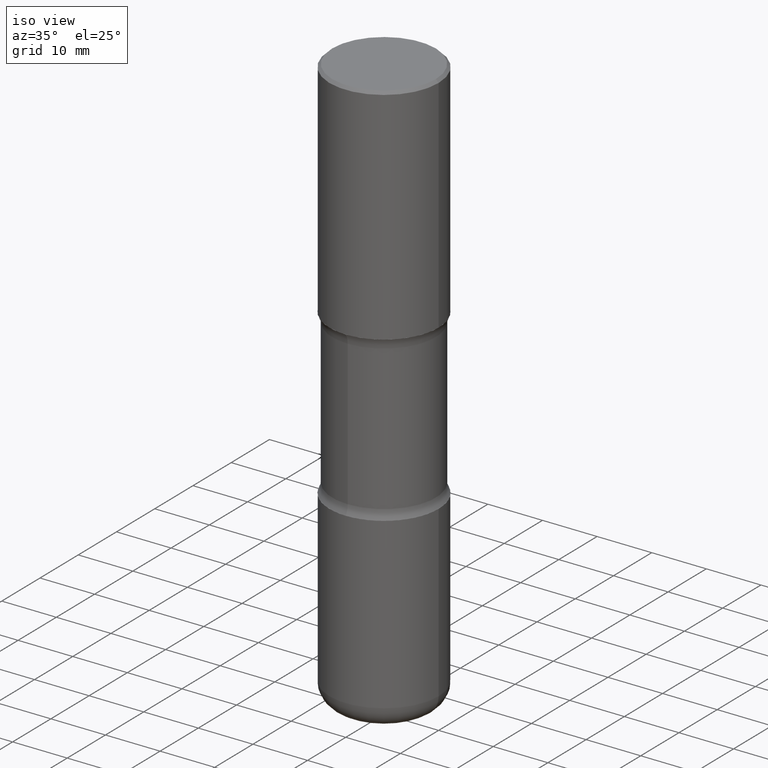
[diagram: clean part render]
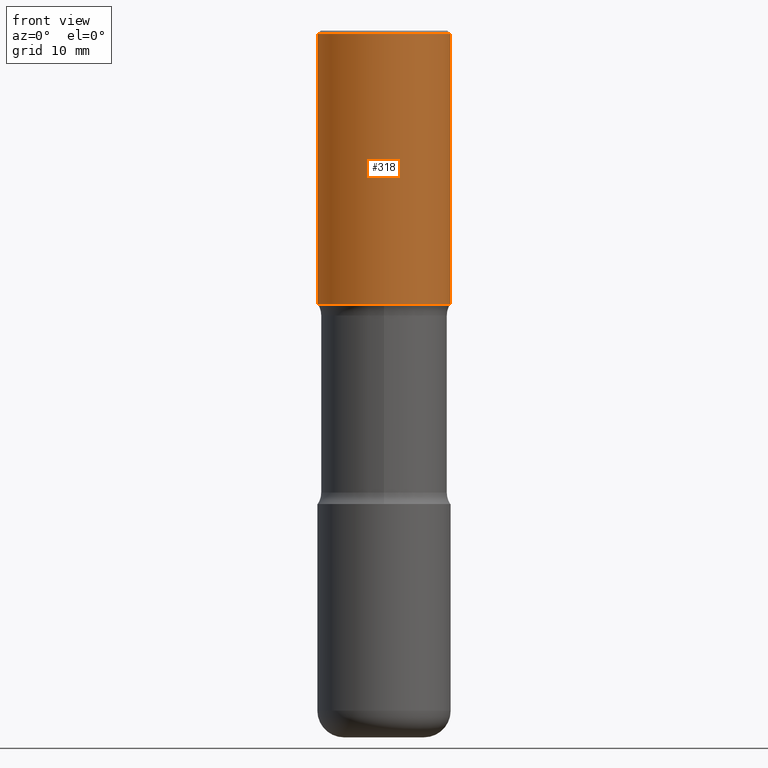
[diagram: tour spotlight — one face highlighted and labeled with its STEP entity id]
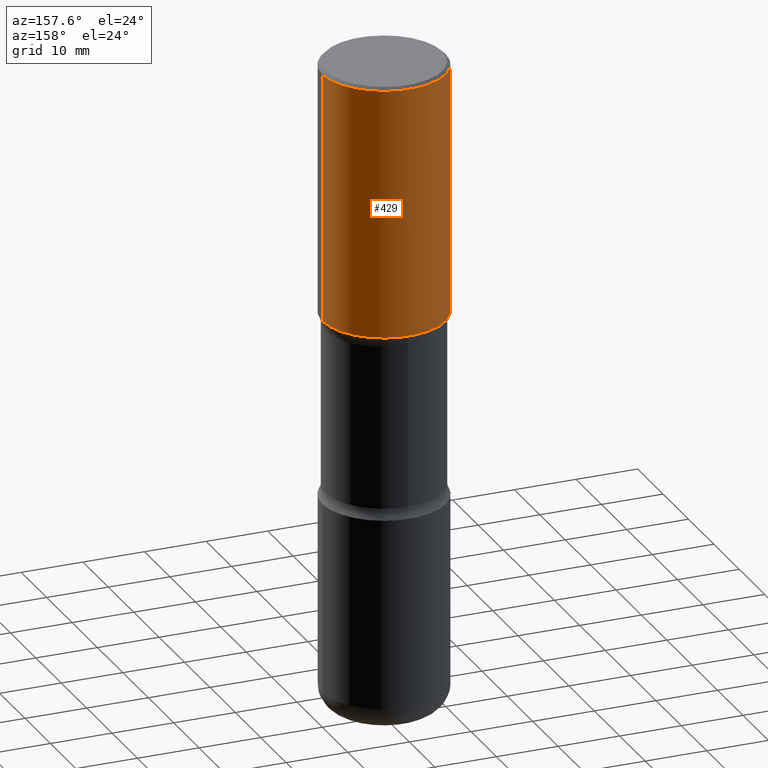
[diagram: tour spotlight — one face highlighted and labeled with its STEP entity id]
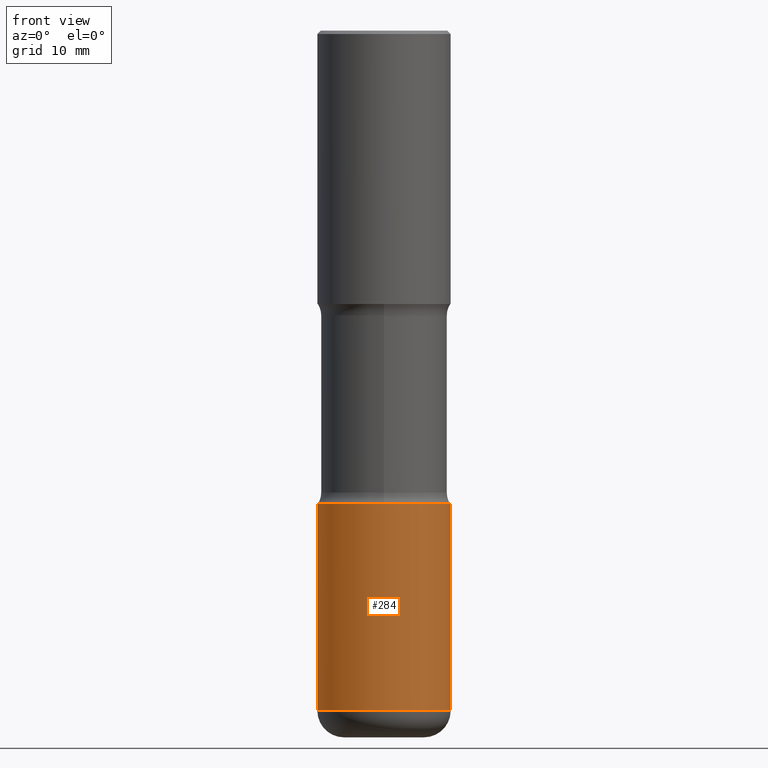
[diagram: tour spotlight — one face highlighted and labeled with its STEP entity id]
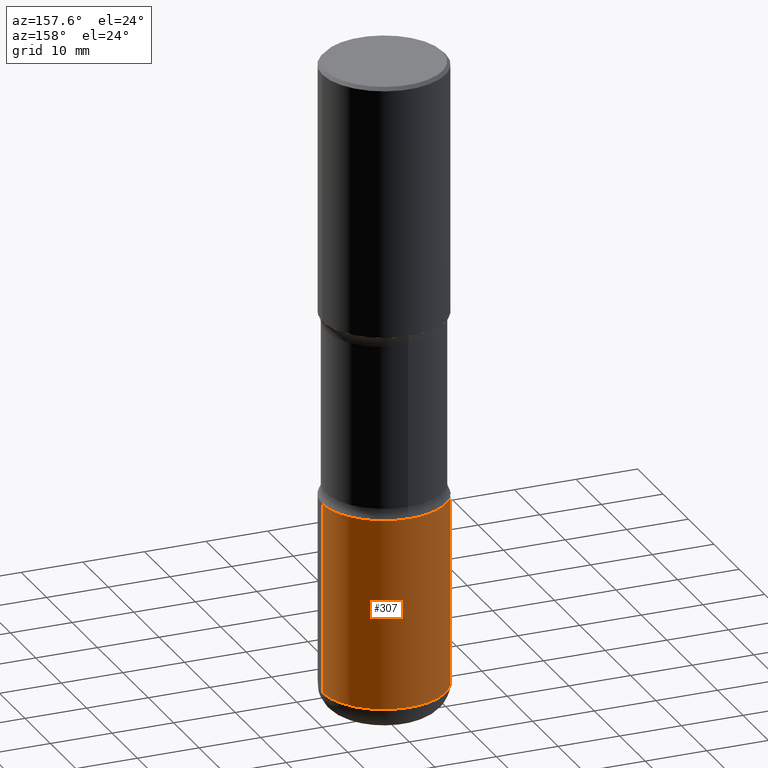
[diagram: tour spotlight — one face highlighted and labeled with its STEP entity id]
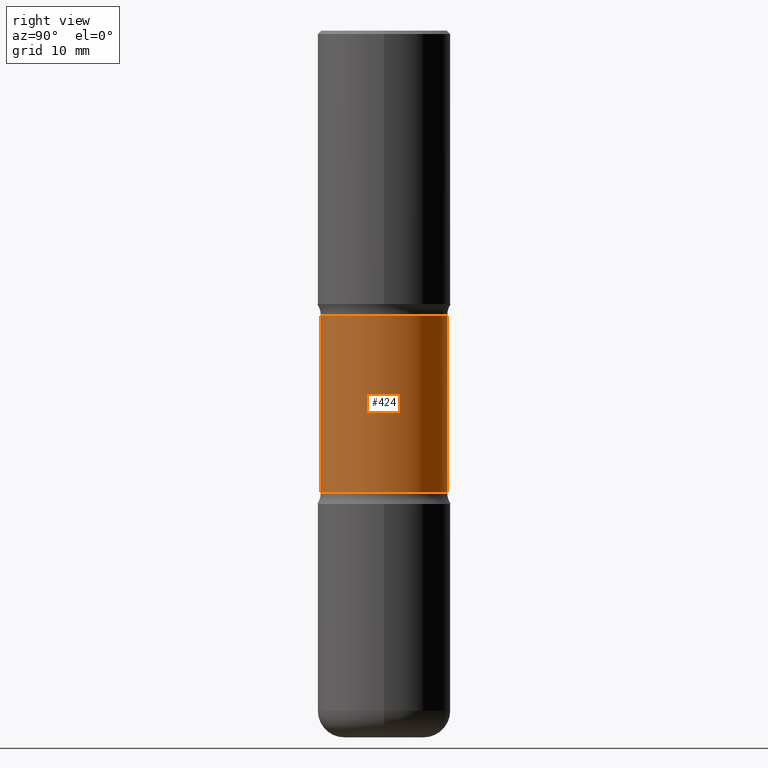
[diagram: tour spotlight — one face highlighted and labeled with its STEP entity id]
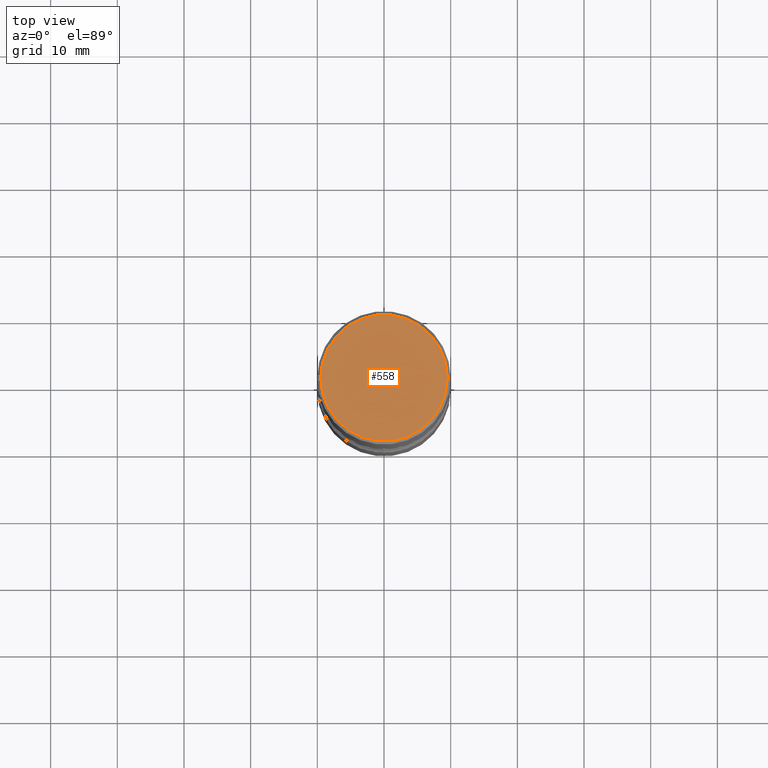
[diagram: tour spotlight — one face highlighted and labeled with its STEP entity id]
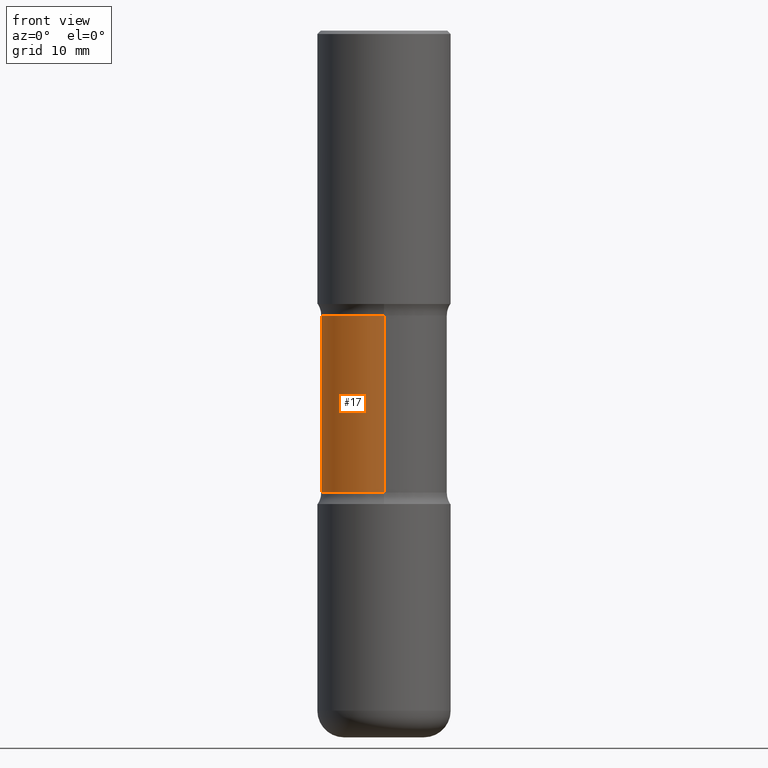
[diagram: tour spotlight — one face highlighted and labeled with its STEP entity id]
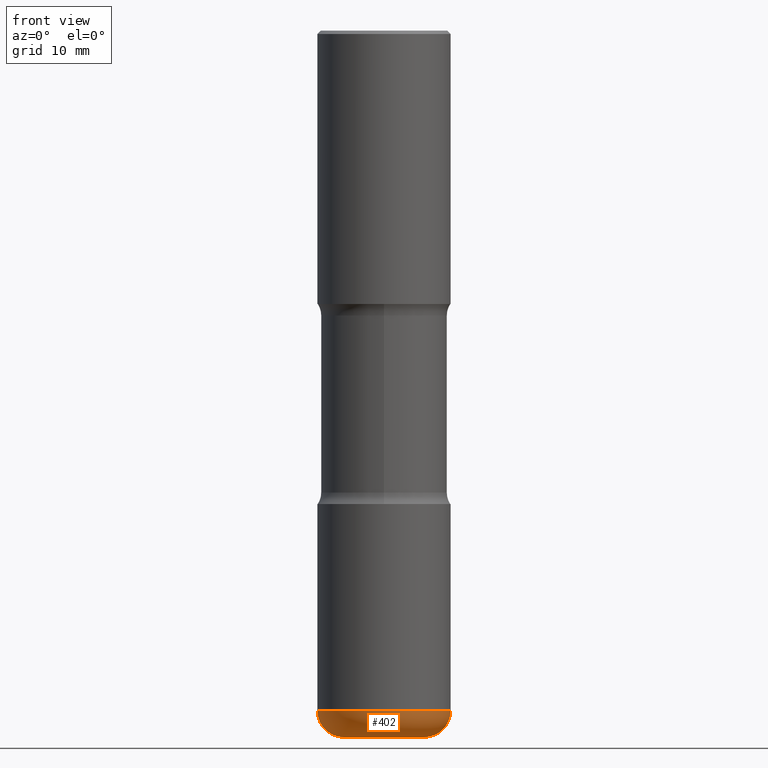
[diagram: tour spotlight — one face highlighted and labeled with its STEP entity id]
A machine part: a face-by-face anatomy tour. The part has 20 B-rep faces; the first image is the clean iso view, then the 8 largest visible faces are spotlighted one at a time (largest first), each with its STEP entity span.

Face 1 — front view, entity #318. In plain terms, the highlighted cylindrical surface (partial cylindrical patch) has radius 10 mm, axis along (-0, 0, 1).
Definition (entity closure, byte-faithful):
#13 = DIRECTION ( 'NONE',  ( -2.445468806185136877E-29, 3.491481338843145188E-15, 1.000000000000000000 ) ) ;
#32 = DIRECTION ( 'NONE',  ( -2.445468806185136877E-29, 3.491481338843145188E-15, 1.000000000000000000 ) ) ;
#54 = DIRECTION ( 'NONE',  ( -2.445468806185136597E-29, 3.491481338843145583E-15, 1.000000000000000000 ) ) ;
#58 = CYLINDRICAL_SURFACE ( 'NONE', #112, 0.3937000000000003830 ) ;
#66 = DIRECTION ( 'NONE',  ( -2.445468806185136597E-29, 3.491481338843145583E-15, 1.000000000000000000 ) ) ;
#99 = AXIS2_PLACEMENT_3D ( 'NONE', #320, #54, #528 ) ;
#112 = AXIS2_PLACEMENT_3D ( 'NONE', #138, #285, #444 ) ;
#123 = ORIENTED_EDGE ( 'NONE', *, *, #189, .T. ) ;
#138 = CARTESIAN_POINT ( 'NONE',  ( 0.000000000000000000, 0.000000000000000000, 0.000000000000000000 ) ) ;
#140 = CARTESIAN_POINT ( 'NONE',  ( 0.3937000000000004385, -8.384792435231807440E-15, -1.614100000000000090 ) ) ;
#178 = CARTESIAN_POINT ( 'NONE',  ( 0.3937000000000003830, -2.749192406205085978E-15, 1.919750796630861853E-29 ) ) ;
#187 = FACE_OUTER_BOUND ( 'NONE', #508, .T. ) ;
#189 = EDGE_CURVE ( 'NONE', #428, #381, #278, .T. ) ;
#215 = CARTESIAN_POINT ( 'NONE',  ( -0.3937000000000003830, 2.797406750687517153E-15, -1.936584745033358137E-29 ) ) ;
#256 = CARTESIAN_POINT ( 'NONE',  ( 0.3937000000000002164, -2.770807688499516917E-15, -0.02000000000000006981 ) ) ;
#267 = ORIENTED_EDGE ( 'NONE', *, *, #530, .F. ) ;
#278 = LINE ( 'NONE', #178, #433 ) ;
#285 = DIRECTION ( 'NONE',  ( -2.445468806185136597E-29, 3.491481338843145583E-15, 1.000000000000000000 ) ) ;
#288 = AXIS2_PLACEMENT_3D ( 'NONE', #458, #66, #461 ) ;
#308 = ORIENTED_EDGE ( 'NONE', *, *, #455, .T. ) ;
#318 = ADVANCED_FACE ( 'NONE', ( #187 ), #58, .T. ) ;
#320 = CARTESIAN_POINT ( 'NONE',  ( 3.947231200063429727E-29, -5.635600029026721857E-15, -1.614100000000000090 ) ) ;
#327 = VECTOR ( 'NONE', #32, 39.37007874015748143 ) ;
#338 = VERTEX_POINT ( 'NONE', #358 ) ;
#358 = CARTESIAN_POINT ( 'NONE',  ( -0.3937000000000004385, -5.530807721427478371E-17, -1.614100000000000090 ) ) ;
#362 = EDGE_CURVE ( 'NONE', #555, #381, #427, .T. ) ;
#381 = VERTEX_POINT ( 'NONE', #256 ) ;
#386 = CIRCLE ( 'NONE', #99, 0.3937000000000004385 ) ;
#427 = CIRCLE ( 'NONE', #288, 0.3937000000000002164 ) ;
#428 = VERTEX_POINT ( 'NONE', #140 ) ;
#433 = VECTOR ( 'NONE', #13, 39.37007874015748143 ) ;
#444 = DIRECTION ( 'NONE',  ( 1.000000000000000000, -6.982962677686266711E-15, 4.876176775795935793E-29 ) ) ;
#455 = EDGE_CURVE ( 'NONE', #338, #428, #386, .T. ) ;
#458 = CARTESIAN_POINT ( 'NONE',  ( 4.890937612370289799E-31, -6.982962677686315028E-17, -0.02000000000000006981 ) ) ;
#461 = DIRECTION ( 'NONE',  ( 1.000000000000000000, -6.982962677686266711E-15, 0.000000000000000000 ) ) ;
#482 = ORIENTED_EDGE ( 'NONE', *, *, #362, .F. ) ;
#507 = LINE ( 'NONE', #215, #327 ) ;
#508 = EDGE_LOOP ( 'NONE', ( #267, #308, #123, #482 ) ) ;
#528 = DIRECTION ( 'NONE',  ( 1.000000000000000000, -6.982962677686265922E-15, 0.000000000000000000 ) ) ;
#530 = EDGE_CURVE ( 'NONE', #338, #555, #507, .T. ) ;
#548 = CARTESIAN_POINT ( 'NONE',  ( -0.3937000000000002164, 2.679362779428221496E-15, -0.02000000000000006981 ) ) ;
#555 = VERTEX_POINT ( 'NONE', #548 ) ;

Face 2 — auxiliary view, entity #429. In plain terms, the highlighted cylindrical surface (partial cylindrical patch) has radius 10 mm, axis along (-0, 0, 1).
Definition (entity closure, byte-faithful):
#2 = EDGE_CURVE ( 'NONE', #428, #338, #4, .T. ) ;
#4 = CIRCLE ( 'NONE', #170, 0.3937000000000004385 ) ;
#13 = DIRECTION ( 'NONE',  ( -2.445468806185136877E-29, 3.491481338843145188E-15, 1.000000000000000000 ) ) ;
#28 = DIRECTION ( 'NONE',  ( -2.445468806185136597E-29, 3.491481338843145583E-15, 1.000000000000000000 ) ) ;
#32 = DIRECTION ( 'NONE',  ( -2.445468806185136877E-29, 3.491481338843145188E-15, 1.000000000000000000 ) ) ;
#52 = CARTESIAN_POINT ( 'NONE',  ( 3.947231200063429727E-29, -5.635600029026721857E-15, -1.614100000000000090 ) ) ;
#72 = CARTESIAN_POINT ( 'NONE',  ( 4.890937612370289799E-31, -6.982962677686315028E-17, -0.02000000000000006981 ) ) ;
#79 = DIRECTION ( 'NONE',  ( 1.000000000000000000, -6.982962677686266711E-15, 0.000000000000000000 ) ) ;
#85 = CIRCLE ( 'NONE', #416, 0.3937000000000002164 ) ;
#140 = CARTESIAN_POINT ( 'NONE',  ( 0.3937000000000004385, -8.384792435231807440E-15, -1.614100000000000090 ) ) ;
#148 = EDGE_LOOP ( 'NONE', ( #498, #351, #181, #349 ) ) ;
#170 = AXIS2_PLACEMENT_3D ( 'NONE', #52, #184, #234 ) ;
#178 = CARTESIAN_POINT ( 'NONE',  ( 0.3937000000000003830, -2.749192406205085978E-15, 1.919750796630861853E-29 ) ) ;
#181 = ORIENTED_EDGE ( 'NONE', *, *, #492, .F. ) ;
#182 = FACE_OUTER_BOUND ( 'NONE', #148, .T. ) ;
#184 = DIRECTION ( 'NONE',  ( -2.445468806185136597E-29, 3.491481338843145583E-15, 1.000000000000000000 ) ) ;
#189 = EDGE_CURVE ( 'NONE', #428, #381, #278, .T. ) ;
#215 = CARTESIAN_POINT ( 'NONE',  ( -0.3937000000000003830, 2.797406750687517153E-15, -1.936584745033358137E-29 ) ) ;
#234 = DIRECTION ( 'NONE',  ( 1.000000000000000000, -6.982962677686265922E-15, 0.000000000000000000 ) ) ;
#248 = CARTESIAN_POINT ( 'NONE',  ( 0.000000000000000000, 0.000000000000000000, 0.000000000000000000 ) ) ;
#256 = CARTESIAN_POINT ( 'NONE',  ( 0.3937000000000002164, -2.770807688499516917E-15, -0.02000000000000006981 ) ) ;
#278 = LINE ( 'NONE', #178, #433 ) ;
#327 = VECTOR ( 'NONE', #32, 39.37007874015748143 ) ;
#331 = DIRECTION ( 'NONE',  ( -2.445468806185136597E-29, 3.491481338843145583E-15, 1.000000000000000000 ) ) ;
#338 = VERTEX_POINT ( 'NONE', #358 ) ;
#349 = ORIENTED_EDGE ( 'NONE', *, *, #189, .F. ) ;
#351 = ORIENTED_EDGE ( 'NONE', *, *, #530, .T. ) ;
#356 = AXIS2_PLACEMENT_3D ( 'NONE', #248, #331, #489 ) ;
#358 = CARTESIAN_POINT ( 'NONE',  ( -0.3937000000000004385, -5.530807721427478371E-17, -1.614100000000000090 ) ) ;
#381 = VERTEX_POINT ( 'NONE', #256 ) ;
#416 = AXIS2_PLACEMENT_3D ( 'NONE', #72, #28, #79 ) ;
#428 = VERTEX_POINT ( 'NONE', #140 ) ;
#429 = ADVANCED_FACE ( 'NONE', ( #182 ), #537, .T. ) ;
#433 = VECTOR ( 'NONE', #13, 39.37007874015748143 ) ;
#489 = DIRECTION ( 'NONE',  ( 1.000000000000000000, -6.982962677686266711E-15, 4.876176775795935793E-29 ) ) ;
#492 = EDGE_CURVE ( 'NONE', #381, #555, #85, .T. ) ;
#498 = ORIENTED_EDGE ( 'NONE', *, *, #2, .T. ) ;
#507 = LINE ( 'NONE', #215, #327 ) ;
#530 = EDGE_CURVE ( 'NONE', #338, #555, #507, .T. ) ;
#537 = CYLINDRICAL_SURFACE ( 'NONE', #356, 0.3937000000000003830 ) ;
#548 = CARTESIAN_POINT ( 'NONE',  ( -0.3937000000000002164, 2.679362779428221496E-15, -0.02000000000000006981 ) ) ;
#555 = VERTEX_POINT ( 'NONE', #548 ) ;

Face 3 — front view, entity #284. In plain terms, the highlighted cylindrical surface (partial cylindrical patch) has radius 10 mm, axis along (-0, 0, 1).
Definition (entity closure, byte-faithful):
#3 = FACE_OUTER_BOUND ( 'NONE', #139, .T. ) ;
#11 = ORIENTED_EDGE ( 'NONE', *, *, #154, .F. ) ;
#15 = VECTOR ( 'NONE', #447, 39.37007874015748143 ) ;
#24 = VERTEX_POINT ( 'NONE', #411 ) ;
#39 = LINE ( 'NONE', #172, #390 ) ;
#73 = LINE ( 'NONE', #253, #15 ) ;
#81 = AXIS2_PLACEMENT_3D ( 'NONE', #501, #212, #206 ) ;
#83 = ORIENTED_EDGE ( 'NONE', *, *, #370, .T. ) ;
#87 = CARTESIAN_POINT ( 'NONE',  ( 0.3937000000000002164, -1.250858104453944804E-14, -2.795200000000000351 ) ) ;
#90 = AXIS2_PLACEMENT_3D ( 'NONE', #369, #481, #529 ) ;
#118 = ORIENTED_EDGE ( 'NONE', *, *, #126, .T. ) ;
#126 = EDGE_CURVE ( 'NONE', #355, #360, #337, .T. ) ;
#129 = CYLINDRICAL_SURFACE ( 'NONE', #90, 0.3937000000000003830 ) ;
#139 = EDGE_LOOP ( 'NONE', ( #11, #118, #83, #531 ) ) ;
#145 = CIRCLE ( 'NONE', #81, 0.3937000000000002164 ) ;
#150 = CARTESIAN_POINT ( 'NONE',  ( 0.3937000000000007716, -1.676993401859750313E-14, -4.015699999999998937 ) ) ;
#154 = EDGE_CURVE ( 'NONE', #355, #24, #39, .T. ) ;
#172 = CARTESIAN_POINT ( 'NONE',  ( -0.3937000000000003830, 2.797406750687517153E-15, -1.936584745033358137E-29 ) ) ;
#205 = CARTESIAN_POINT ( 'NONE',  ( -0.3937000000000007716, -1.122333486170489645E-14, -4.015699999999998937 ) ) ;
#206 = DIRECTION ( 'NONE',  ( 1.000000000000000000, -6.982962677686269866E-15, 0.000000000000000000 ) ) ;
#212 = DIRECTION ( 'NONE',  ( -2.445468806185136597E-29, 3.491481338843145583E-15, 1.000000000000000000 ) ) ;
#222 = DIRECTION ( 'NONE',  ( 1.000000000000000000, -6.982962677686269077E-15, 0.000000000000000000 ) ) ;
#253 = CARTESIAN_POINT ( 'NONE',  ( 0.3937000000000003830, -2.749192406205085978E-15, 1.919750796630861853E-29 ) ) ;
#265 = DIRECTION ( 'NONE',  ( -2.445468806185136597E-29, 3.491481338843145583E-15, 1.000000000000000000 ) ) ;
#284 = ADVANCED_FACE ( 'NONE', ( #3 ), #129, .T. ) ;
#309 = CARTESIAN_POINT ( 'NONE',  ( 9.820269084997649591E-29, -1.402074161239241518E-14, -4.015699999999998937 ) ) ;
#337 = CIRCLE ( 'NONE', #354, 0.3937000000000005495 ) ;
#352 = VERTEX_POINT ( 'NONE', #87 ) ;
#354 = AXIS2_PLACEMENT_3D ( 'NONE', #309, #265, #222 ) ;
#355 = VERTEX_POINT ( 'NONE', #205 ) ;
#360 = VERTEX_POINT ( 'NONE', #150 ) ;
#369 = CARTESIAN_POINT ( 'NONE',  ( 0.000000000000000000, 0.000000000000000000, 0.000000000000000000 ) ) ;
#370 = EDGE_CURVE ( 'NONE', #360, #352, #73, .T. ) ;
#390 = VECTOR ( 'NONE', #395, 39.37007874015748143 ) ;
#395 = DIRECTION ( 'NONE',  ( -2.445468806185136877E-29, 3.491481338843145188E-15, 1.000000000000000000 ) ) ;
#411 = CARTESIAN_POINT ( 'NONE',  ( -0.3937000000000002164, -9.092658374675872059E-15, -2.795200000000000351 ) ) ;
#447 = DIRECTION ( 'NONE',  ( -2.445468806185136877E-29, 3.491481338843145188E-15, 1.000000000000000000 ) ) ;
#481 = DIRECTION ( 'NONE',  ( -2.445468806185136597E-29, 3.491481338843145583E-15, 1.000000000000000000 ) ) ;
#501 = CARTESIAN_POINT ( 'NONE',  ( 6.835574407048695164E-29, -9.759388638334361670E-15, -2.795200000000000351 ) ) ;
#529 = DIRECTION ( 'NONE',  ( 1.000000000000000000, -6.982962677686266711E-15, 4.876176775795935793E-29 ) ) ;
#531 = ORIENTED_EDGE ( 'NONE', *, *, #539, .F. ) ;
#539 = EDGE_CURVE ( 'NONE', #24, #352, #145, .T. ) ;

Face 4 — auxiliary view, entity #307. In plain terms, the highlighted cylindrical surface (partial cylindrical patch) has radius 10 mm, axis along (-0, 0, 1).
Definition (entity closure, byte-faithful):
#14 = AXIS2_PLACEMENT_3D ( 'NONE', #169, #542, #107 ) ;
#15 = VECTOR ( 'NONE', #447, 39.37007874015748143 ) ;
#24 = VERTEX_POINT ( 'NONE', #411 ) ;
#39 = LINE ( 'NONE', #172, #390 ) ;
#41 = AXIS2_PLACEMENT_3D ( 'NONE', #281, #233, #397 ) ;
#62 = ORIENTED_EDGE ( 'NONE', *, *, #221, .F. ) ;
#73 = LINE ( 'NONE', #253, #15 ) ;
#87 = CARTESIAN_POINT ( 'NONE',  ( 0.3937000000000002164, -1.250858104453944804E-14, -2.795200000000000351 ) ) ;
#92 = CYLINDRICAL_SURFACE ( 'NONE', #41, 0.3937000000000003830 ) ;
#107 = DIRECTION ( 'NONE',  ( 1.000000000000000000, -6.982962677686269077E-15, 0.000000000000000000 ) ) ;
#111 = EDGE_CURVE ( 'NONE', #360, #355, #376, .T. ) ;
#133 = FACE_OUTER_BOUND ( 'NONE', #373, .T. ) ;
#150 = CARTESIAN_POINT ( 'NONE',  ( 0.3937000000000007716, -1.676993401859750313E-14, -4.015699999999998937 ) ) ;
#154 = EDGE_CURVE ( 'NONE', #355, #24, #39, .T. ) ;
#169 = CARTESIAN_POINT ( 'NONE',  ( 9.820269084997649591E-29, -1.402074161239241518E-14, -4.015699999999998937 ) ) ;
#172 = CARTESIAN_POINT ( 'NONE',  ( -0.3937000000000003830, 2.797406750687517153E-15, -1.936584745033358137E-29 ) ) ;
#194 = ORIENTED_EDGE ( 'NONE', *, *, #111, .T. ) ;
#205 = CARTESIAN_POINT ( 'NONE',  ( -0.3937000000000007716, -1.122333486170489645E-14, -4.015699999999998937 ) ) ;
#221 = EDGE_CURVE ( 'NONE', #352, #24, #446, .T. ) ;
#231 = ORIENTED_EDGE ( 'NONE', *, *, #154, .T. ) ;
#233 = DIRECTION ( 'NONE',  ( -2.445468806185136597E-29, 3.491481338843145583E-15, 1.000000000000000000 ) ) ;
#253 = CARTESIAN_POINT ( 'NONE',  ( 0.3937000000000003830, -2.749192406205085978E-15, 1.919750796630861853E-29 ) ) ;
#281 = CARTESIAN_POINT ( 'NONE',  ( 0.000000000000000000, 0.000000000000000000, 0.000000000000000000 ) ) ;
#307 = ADVANCED_FACE ( 'NONE', ( #133 ), #92, .T. ) ;
#313 = CARTESIAN_POINT ( 'NONE',  ( 6.835574407048695164E-29, -9.759388638334361670E-15, -2.795200000000000351 ) ) ;
#352 = VERTEX_POINT ( 'NONE', #87 ) ;
#355 = VERTEX_POINT ( 'NONE', #205 ) ;
#360 = VERTEX_POINT ( 'NONE', #150 ) ;
#370 = EDGE_CURVE ( 'NONE', #360, #352, #73, .T. ) ;
#373 = EDGE_LOOP ( 'NONE', ( #194, #231, #62, #534 ) ) ;
#376 = CIRCLE ( 'NONE', #14, 0.3937000000000005495 ) ;
#390 = VECTOR ( 'NONE', #395, 39.37007874015748143 ) ;
#391 = AXIS2_PLACEMENT_3D ( 'NONE', #313, #436, #532 ) ;
#395 = DIRECTION ( 'NONE',  ( -2.445468806185136877E-29, 3.491481338843145188E-15, 1.000000000000000000 ) ) ;
#397 = DIRECTION ( 'NONE',  ( 1.000000000000000000, -6.982962677686266711E-15, 4.876176775795935793E-29 ) ) ;
#411 = CARTESIAN_POINT ( 'NONE',  ( -0.3937000000000002164, -9.092658374675872059E-15, -2.795200000000000351 ) ) ;
#436 = DIRECTION ( 'NONE',  ( -2.445468806185136597E-29, 3.491481338843145583E-15, 1.000000000000000000 ) ) ;
#446 = CIRCLE ( 'NONE', #391, 0.3937000000000002164 ) ;
#447 = DIRECTION ( 'NONE',  ( -2.445468806185136877E-29, 3.491481338843145188E-15, 1.000000000000000000 ) ) ;
#532 = DIRECTION ( 'NONE',  ( 1.000000000000000000, -6.982962677686269866E-15, 0.000000000000000000 ) ) ;
#534 = ORIENTED_EDGE ( 'NONE', *, *, #370, .F. ) ;
#542 = DIRECTION ( 'NONE',  ( -2.445468806185136597E-29, 3.491481338843145583E-15, 1.000000000000000000 ) ) ;

Face 5 — right view, entity #424. In plain terms, the highlighted cylindrical surface (partial cylindrical patch) has radius 9.4869 mm, axis along (0, -0, -1).
Definition (entity closure, byte-faithful):
#9 = DIRECTION ( 'NONE',  ( 2.497382066111305685E-29, -3.417138595909611452E-15, -1.000000000000000000 ) ) ;
#46 = EDGE_CURVE ( 'NONE', #201, #237, #526, .T. ) ;
#51 = CARTESIAN_POINT ( 'NONE',  ( 2.608136560115886471E-15, 0.3734999999999905063, -2.727068069159902741 ) ) ;
#53 = EDGE_CURVE ( 'NONE', #480, #237, #374, .T. ) ;
#59 = ORIENTED_EDGE ( 'NONE', *, *, #53, .T. ) ;
#64 = CARTESIAN_POINT ( 'NONE',  ( 6.665422944839096374E-29, -9.526572387846816848E-15, -2.727068069159901409 ) ) ;
#77 = DIRECTION ( 'NONE',  ( 6.982962677686265922E-15, 1.000000000000000000, -3.657092360996335267E-15 ) ) ;
#82 = CARTESIAN_POINT ( 'NONE',  ( -2.631687031945121663E-15, -0.3735000000000060494, -1.682231930840098144 ) ) ;
#91 = CARTESIAN_POINT ( 'NONE',  ( -2.562396002167563676E-15, -0.3735000000000144871, -4.173199999999998688 ) ) ;
#110 = AXIS2_PLACEMENT_3D ( 'NONE', #64, #413, #475 ) ;
#171 = CIRCLE ( 'NONE', #348, 0.3735000000000001097 ) ;
#197 = CYLINDRICAL_SURFACE ( 'NONE', #316, 0.3734999999999999987 ) ;
#201 = VERTEX_POINT ( 'NONE', #51 ) ;
#211 = VECTOR ( 'NONE', #430, 39.37007874015748143 ) ;
#237 = VERTEX_POINT ( 'NONE', #440 ) ;
#252 = CARTESIAN_POINT ( 'NONE',  ( 4.056067910974230799E-29, -5.956222493193065901E-15, -1.682231930840099476 ) ) ;
#275 = DIRECTION ( 'NONE',  ( 2.497382066111305685E-29, -3.417138595909611452E-15, -1.000000000000000000 ) ) ;
#306 = EDGE_CURVE ( 'NONE', #377, #201, #525, .T. ) ;
#316 = AXIS2_PLACEMENT_3D ( 'NONE', #439, #9, #375 ) ;
#325 = FACE_OUTER_BOUND ( 'NONE', #559, .T. ) ;
#346 = VECTOR ( 'NONE', #275, 39.37007874015748143 ) ;
#348 = AXIS2_PLACEMENT_3D ( 'NONE', #252, #418, #77 ) ;
#363 = CARTESIAN_POINT ( 'NONE',  ( 2.608136560115922758E-15, 0.3734999999999855103, -4.173200000000001353 ) ) ;
#368 = ORIENTED_EDGE ( 'NONE', *, *, #306, .F. ) ;
#374 = LINE ( 'NONE', #91, #346 ) ;
#375 = DIRECTION ( 'NONE',  ( 6.982962677686265922E-15, 1.000000000000000000, -2.925673888797068924E-15 ) ) ;
#377 = VERTEX_POINT ( 'NONE', #491 ) ;
#413 = DIRECTION ( 'NONE',  ( 2.497382066111305685E-29, -3.417138595909611452E-15, -1.000000000000000000 ) ) ;
#418 = DIRECTION ( 'NONE',  ( 2.497382066111305685E-29, -3.417138595909611452E-15, -1.000000000000000000 ) ) ;
#424 = ADVANCED_FACE ( 'NONE', ( #325 ), #197, .T. ) ;
#430 = DIRECTION ( 'NONE',  ( 2.497382066111305685E-29, -3.417138595909611452E-15, -1.000000000000000000 ) ) ;
#439 = CARTESIAN_POINT ( 'NONE',  ( 1.027696689415007474E-28, -1.446820562349780459E-14, -4.173200000000000465 ) ) ;
#440 = CARTESIAN_POINT ( 'NONE',  ( -2.631687031945092476E-15, -0.3735000000000094911, -2.727068069159900521 ) ) ;
#475 = DIRECTION ( 'NONE',  ( 6.982962677686265922E-15, 1.000000000000000000, -2.925673888797068924E-15 ) ) ;
#480 = VERTEX_POINT ( 'NONE', #82 ) ;
#490 = ORIENTED_EDGE ( 'NONE', *, *, #46, .F. ) ;
#491 = CARTESIAN_POINT ( 'NONE',  ( 2.608136560115861621E-15, 0.3734999999999941700, -1.682231930840100809 ) ) ;
#516 = ORIENTED_EDGE ( 'NONE', *, *, #547, .T. ) ;
#525 = LINE ( 'NONE', #363, #211 ) ;
#526 = CIRCLE ( 'NONE', #110, 0.3734999999999999987 ) ;
#547 = EDGE_CURVE ( 'NONE', #377, #480, #171, .T. ) ;
#559 = EDGE_LOOP ( 'NONE', ( #516, #59, #490, #368 ) ) ;

Face 6 — top view, entity #558. In plain terms, the highlighted planar face has unit normal (0, -0, -1).
Definition (entity closure, byte-faithful):
#12 = EDGE_CURVE ( 'NONE', #332, #404, #225, .T. ) ;
#70 = AXIS2_PLACEMENT_3D ( 'NONE', #127, #560, #214 ) ;
#88 = CARTESIAN_POINT ( 'NONE',  ( -3.131554243005659264E-46, 4.471029511141341874E-32, 1.280553747030123384E-17 ) ) ;
#108 = CARTESIAN_POINT ( 'NONE',  ( 2.609533152651358987E-15, 0.3737000000000002542, -1.298363807590533784E-15 ) ) ;
#127 = CARTESIAN_POINT ( 'NONE',  ( -3.131554243005659264E-46, 4.471029511141341874E-32, 1.280553747030123384E-17 ) ) ;
#146 = EDGE_LOOP ( 'NONE', ( #451, #324 ) ) ;
#151 = EDGE_CURVE ( 'NONE', #404, #332, #408, .T. ) ;
#185 = CARTESIAN_POINT ( 'NONE',  ( 0.3737000000000002542, -2.667287895133369937E-15, 1.280553747031968579E-17 ) ) ;
#200 = DIRECTION ( 'NONE',  ( 2.438088387897960049E-29, -3.491481338843145188E-15, -1.000000000000000000 ) ) ;
#214 = DIRECTION ( 'NONE',  ( 1.000000000000000000, -6.982962677686266711E-15, 4.876212485538972316E-29 ) ) ;
#225 = CIRCLE ( 'NONE', #304, 0.3737000000000002542 ) ;
#238 = CARTESIAN_POINT ( 'NONE',  ( -0.3737000000000002542, 2.644447966039791030E-15, 1.280553747028286201E-17 ) ) ;
#258 = PLANE ( 'NONE',  #468 ) ;
#304 = AXIS2_PLACEMENT_3D ( 'NONE', #88, #407, #523 ) ;
#324 = ORIENTED_EDGE ( 'NONE', *, *, #151, .T. ) ;
#332 = VERTEX_POINT ( 'NONE', #238 ) ;
#341 = DIRECTION ( 'NONE',  ( -1.000000000000000000, 6.982962677686265922E-15, -4.876176775795935793E-29 ) ) ;
#385 = FACE_OUTER_BOUND ( 'NONE', #146, .T. ) ;
#404 = VERTEX_POINT ( 'NONE', #185 ) ;
#407 = DIRECTION ( 'NONE',  ( -2.445468806185136597E-29, 3.491481338843145583E-15, 1.000000000000000000 ) ) ;
#408 = CIRCLE ( 'NONE', #70, 0.3737000000000002542 ) ;
#451 = ORIENTED_EDGE ( 'NONE', *, *, #12, .T. ) ;
#468 = AXIS2_PLACEMENT_3D ( 'NONE', #108, #200, #341 ) ;
#523 = DIRECTION ( 'NONE',  ( 1.000000000000000000, -6.982962677686266711E-15, 4.876212485538972316E-29 ) ) ;
#558 = ADVANCED_FACE ( 'NONE', ( #385 ), #258, .F. ) ;
#560 = DIRECTION ( 'NONE',  ( -2.445468806185136597E-29, 3.491481338843145583E-15, 1.000000000000000000 ) ) ;

Face 7 — front view, entity #17. In plain terms, the highlighted cylindrical surface (partial cylindrical patch) has radius 9.4869 mm, axis along (0, -0, -1).
Definition (entity closure, byte-faithful):
#17 = ADVANCED_FACE ( 'NONE', ( #286 ), #438, .T. ) ;
#19 = ORIENTED_EDGE ( 'NONE', *, *, #43, .F. ) ;
#22 = ORIENTED_EDGE ( 'NONE', *, *, #264, .T. ) ;
#43 = EDGE_CURVE ( 'NONE', #237, #201, #48, .T. ) ;
#48 = CIRCLE ( 'NONE', #365, 0.3734999999999999987 ) ;
#50 = DIRECTION ( 'NONE',  ( 6.982962677686265922E-15, 1.000000000000000000, -2.925673888797068924E-15 ) ) ;
#51 = CARTESIAN_POINT ( 'NONE',  ( 2.608136560115886471E-15, 0.3734999999999905063, -2.727068069159902741 ) ) ;
#53 = EDGE_CURVE ( 'NONE', #480, #237, #374, .T. ) ;
#80 = AXIS2_PLACEMENT_3D ( 'NONE', #364, #245, #50 ) ;
#82 = CARTESIAN_POINT ( 'NONE',  ( -2.631687031945121663E-15, -0.3735000000000060494, -1.682231930840098144 ) ) ;
#89 = DIRECTION ( 'NONE',  ( 6.982962677686265922E-15, 1.000000000000000000, -3.657092360996335267E-15 ) ) ;
#91 = CARTESIAN_POINT ( 'NONE',  ( -2.562396002167563676E-15, -0.3735000000000144871, -4.173199999999998688 ) ) ;
#134 = CIRCLE ( 'NONE', #457, 0.3735000000000001097 ) ;
#142 = CARTESIAN_POINT ( 'NONE',  ( 6.665422944839096374E-29, -9.526572387846816848E-15, -2.727068069159901409 ) ) ;
#175 = ORIENTED_EDGE ( 'NONE', *, *, #306, .T. ) ;
#192 = EDGE_LOOP ( 'NONE', ( #466, #22, #175, #19 ) ) ;
#201 = VERTEX_POINT ( 'NONE', #51 ) ;
#211 = VECTOR ( 'NONE', #430, 39.37007874015748143 ) ;
#237 = VERTEX_POINT ( 'NONE', #440 ) ;
#245 = DIRECTION ( 'NONE',  ( 2.497382066111305685E-29, -3.417138595909611452E-15, -1.000000000000000000 ) ) ;
#264 = EDGE_CURVE ( 'NONE', #480, #377, #134, .T. ) ;
#275 = DIRECTION ( 'NONE',  ( 2.497382066111305685E-29, -3.417138595909611452E-15, -1.000000000000000000 ) ) ;
#286 = FACE_OUTER_BOUND ( 'NONE', #192, .T. ) ;
#306 = EDGE_CURVE ( 'NONE', #377, #201, #525, .T. ) ;
#330 = DIRECTION ( 'NONE',  ( 6.982962677686265922E-15, 1.000000000000000000, -2.925673888797068924E-15 ) ) ;
#346 = VECTOR ( 'NONE', #275, 39.37007874015748143 ) ;
#363 = CARTESIAN_POINT ( 'NONE',  ( 2.608136560115922758E-15, 0.3734999999999855103, -4.173200000000001353 ) ) ;
#364 = CARTESIAN_POINT ( 'NONE',  ( 1.027696689415007474E-28, -1.446820562349780459E-14, -4.173200000000000465 ) ) ;
#365 = AXIS2_PLACEMENT_3D ( 'NONE', #142, #485, #330 ) ;
#367 = DIRECTION ( 'NONE',  ( 2.497382066111305685E-29, -3.417138595909611452E-15, -1.000000000000000000 ) ) ;
#374 = LINE ( 'NONE', #91, #346 ) ;
#377 = VERTEX_POINT ( 'NONE', #491 ) ;
#410 = CARTESIAN_POINT ( 'NONE',  ( 4.056067910974230799E-29, -5.956222493193065901E-15, -1.682231930840099476 ) ) ;
#430 = DIRECTION ( 'NONE',  ( 2.497382066111305685E-29, -3.417138595909611452E-15, -1.000000000000000000 ) ) ;
#438 = CYLINDRICAL_SURFACE ( 'NONE', #80, 0.3734999999999999987 ) ;
#440 = CARTESIAN_POINT ( 'NONE',  ( -2.631687031945092476E-15, -0.3735000000000094911, -2.727068069159900521 ) ) ;
#457 = AXIS2_PLACEMENT_3D ( 'NONE', #410, #367, #89 ) ;
#466 = ORIENTED_EDGE ( 'NONE', *, *, #53, .F. ) ;
#480 = VERTEX_POINT ( 'NONE', #82 ) ;
#485 = DIRECTION ( 'NONE',  ( 2.497382066111305685E-29, -3.417138595909611452E-15, -1.000000000000000000 ) ) ;
#491 = CARTESIAN_POINT ( 'NONE',  ( 2.608136560115861621E-15, 0.3734999999999941700, -1.682231930840100809 ) ) ;
#525 = LINE ( 'NONE', #363, #211 ) ;

Face 8 — front view, entity #402. In plain terms, the highlighted toroidal blend (fillet) surface has major radius 5.9995 mm and minor (blend) radius 4.0005 mm.
Definition (entity closure, byte-faithful):
#7 = DIRECTION ( 'NONE',  ( -1.000000000000000000, 7.105427357601006592E-15, 0.000000000000000000 ) ) ;
#21 = VERTEX_POINT ( 'NONE', #527 ) ;
#29 = FACE_OUTER_BOUND ( 'NONE', #420, .T. ) ;
#40 = EDGE_CURVE ( 'NONE', #484, #21, #210, .T. ) ;
#121 = AXIS2_PLACEMENT_3D ( 'NONE', #230, #180, #7 ) ;
#126 = EDGE_CURVE ( 'NONE', #355, #360, #337, .T. ) ;
#136 = CARTESIAN_POINT ( 'NONE',  ( 9.820269084997649591E-29, -1.402074161239241518E-14, -4.015699999999998937 ) ) ;
#150 = CARTESIAN_POINT ( 'NONE',  ( 0.3937000000000007716, -1.676993401859750313E-14, -4.015699999999998937 ) ) ;
#173 = EDGE_CURVE ( 'NONE', #21, #360, #486, .T. ) ;
#179 = EDGE_CURVE ( 'NONE', #484, #355, #276, .T. ) ;
#180 = DIRECTION ( 'NONE',  ( 7.105427357601001859E-15, 1.000000000000000000, -3.491481338843145583E-15 ) ) ;
#191 = CARTESIAN_POINT ( 'NONE',  ( 1.020543042197181255E-28, -1.457064992326021168E-14, -4.173199999999999577 ) ) ;
#196 = DIRECTION ( 'NONE',  ( 1.000000000000000000, -6.982962677686262766E-15, 0.000000000000000000 ) ) ;
#205 = CARTESIAN_POINT ( 'NONE',  ( -0.3937000000000007716, -1.122333486170489645E-14, -4.015699999999998937 ) ) ;
#210 = CIRCLE ( 'NONE', #517, 0.2362000000000006039 ) ;
#216 = ORIENTED_EDGE ( 'NONE', *, *, #126, .F. ) ;
#222 = DIRECTION ( 'NONE',  ( 1.000000000000000000, -6.982962677686269077E-15, 0.000000000000000000 ) ) ;
#230 = CARTESIAN_POINT ( 'NONE',  ( -0.2362000000000005762, -1.234243967052705563E-14, -4.015699999999998937 ) ) ;
#232 = DIRECTION ( 'NONE',  ( 1.000000000000000000, -6.982962677686266711E-15, 4.883557194083112340E-29 ) ) ;
#259 = AXIS2_PLACEMENT_3D ( 'NONE', #467, #321, #323 ) ;
#265 = DIRECTION ( 'NONE',  ( -2.445468806185136597E-29, 3.491481338843145583E-15, 1.000000000000000000 ) ) ;
#276 = CIRCLE ( 'NONE', #121, 0.1575000000000003342 ) ;
#309 = CARTESIAN_POINT ( 'NONE',  ( 9.820269084997649591E-29, -1.402074161239241518E-14, -4.015699999999998937 ) ) ;
#310 = TOROIDAL_SURFACE ( 'NONE', #503, 0.2362000000000005762, 0.1575000000000003619 ) ;
#311 = ORIENTED_EDGE ( 'NONE', *, *, #179, .F. ) ;
#321 = DIRECTION ( 'NONE',  ( -6.982962677686266711E-15, -1.000000000000000000, 3.491481338843145583E-15 ) ) ;
#323 = DIRECTION ( 'NONE',  ( 1.000000000000000000, -6.982962677686271444E-15, 0.000000000000000000 ) ) ;
#335 = ORIENTED_EDGE ( 'NONE', *, *, #173, .T. ) ;
#337 = CIRCLE ( 'NONE', #354, 0.3937000000000005495 ) ;
#354 = AXIS2_PLACEMENT_3D ( 'NONE', #309, #265, #222 ) ;
#355 = VERTEX_POINT ( 'NONE', #205 ) ;
#360 = VERTEX_POINT ( 'NONE', #150 ) ;
#361 = DIRECTION ( 'NONE',  ( -2.445468806185136597E-29, 3.491481338843145583E-15, 1.000000000000000000 ) ) ;
#402 = ADVANCED_FACE ( 'NONE', ( #29 ), #310, .T. ) ;
#420 = EDGE_LOOP ( 'NONE', ( #311, #478, #335, #216 ) ) ;
#467 = CARTESIAN_POINT ( 'NONE',  ( 0.2362000000000005762, -1.567011739686191643E-14, -4.015699999999998937 ) ) ;
#469 = CARTESIAN_POINT ( 'NONE',  ( -0.2362000000000006039, -1.205784142154987508E-14, -4.173199999999999577 ) ) ;
#478 = ORIENTED_EDGE ( 'NONE', *, *, #40, .T. ) ;
#484 = VERTEX_POINT ( 'NONE', #469 ) ;
#486 = CIRCLE ( 'NONE', #259, 0.1575000000000003342 ) ;
#503 = AXIS2_PLACEMENT_3D ( 'NONE', #136, #361, #232 ) ;
#517 = AXIS2_PLACEMENT_3D ( 'NONE', #191, #533, #196 ) ;
#527 = CARTESIAN_POINT ( 'NONE',  ( 0.2362000000000006039, -1.622002570772971136E-14, -4.173199999999999577 ) ) ;
#533 = DIRECTION ( 'NONE',  ( -2.445468806185136597E-29, 3.491481338843145583E-15, 1.000000000000000000 ) ) ;